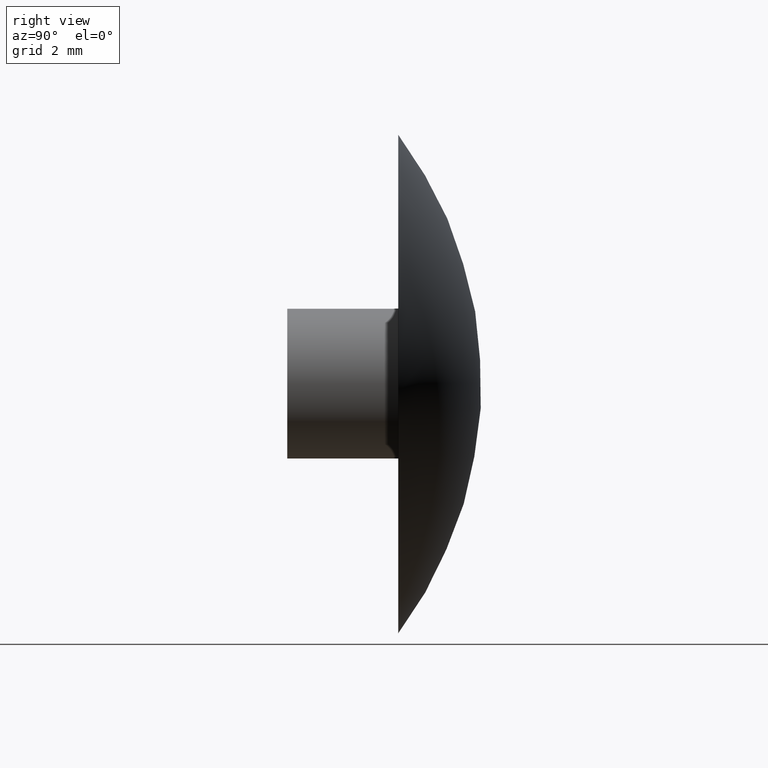
[diagram: clean part render]
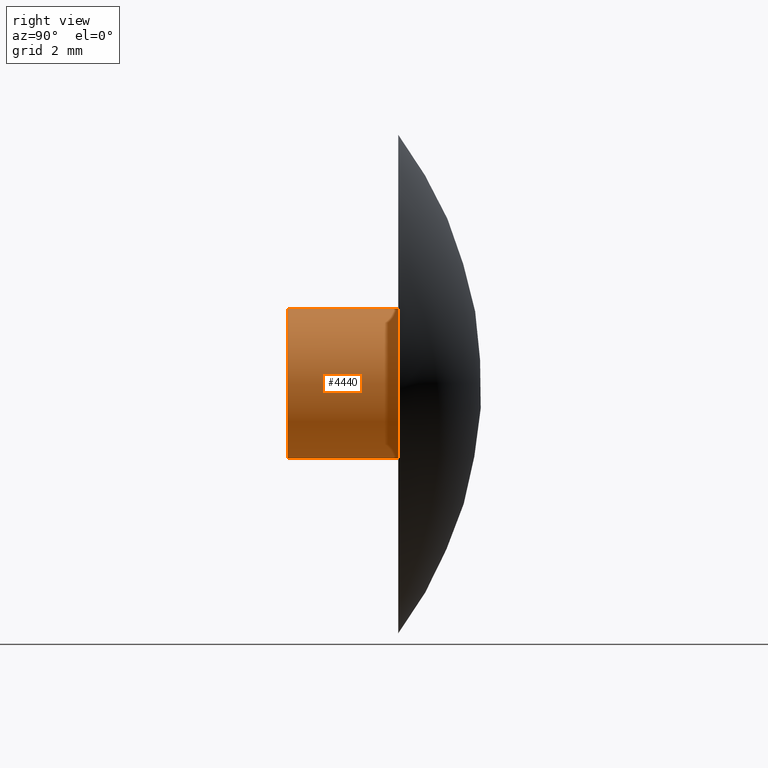
[diagram: same view with one face highlighted and labeled with its STEP entity id]
A machine part, right view. The second image highlights one B-rep face of the part: STEP entity #4440.
In plain terms, the highlighted cylindrical surface (bore or boss wall) has radius 1.35 mm, axis along (-0, -1, -0).
Its self-contained STEP definition (entity closure, byte-faithful):
#106 = DIRECTION ( 'NONE',  ( -0.000000000000000000, -1.000000000000000000, -0.000000000000000000 ) ) ;
#1083 = EDGE_LOOP ( 'NONE', ( #2098 ) ) ;
#1282 = VERTEX_POINT ( 'NONE', #5101 ) ;
#2028 = AXIS2_PLACEMENT_3D ( 'NONE', #11880, #8010, #5981 ) ;
#2098 = ORIENTED_EDGE ( 'NONE', *, *, #10939, .T. ) ;
#3810 = EDGE_CURVE ( 'NONE', #8001, #8001, #8369, .T. ) ;
#4440 = ADVANCED_FACE ( 'NONE', ( #11070, #8225 ), #7190, .T. ) ;
#5101 = CARTESIAN_POINT ( 'NONE',  ( 0.000000000000000000, 2.000000000000000000, -1.350000000000000089 ) ) ;
#5934 = DIRECTION ( 'NONE',  ( 0.000000000000000000, 0.000000000000000000, -1.000000000000000000 ) ) ;
#5981 = DIRECTION ( 'NONE',  ( 0.000000000000000000, 0.000000000000000000, -1.000000000000000000 ) ) ;
#6126 = DIRECTION ( 'NONE',  ( 0.000000000000000000, 0.000000000000000000, -1.000000000000000000 ) ) ;
#7123 = CIRCLE ( 'NONE', #9475, 1.350000000000000089 ) ;
#7190 = CYLINDRICAL_SURFACE ( 'NONE', #2028, 1.350000000000000089 ) ;
#7424 = ORIENTED_EDGE ( 'NONE', *, *, #3810, .F. ) ;
#8001 = VERTEX_POINT ( 'NONE', #9834 ) ;
#8010 = DIRECTION ( 'NONE',  ( -0.000000000000000000, -1.000000000000000000, -0.000000000000000000 ) ) ;
#8020 = AXIS2_PLACEMENT_3D ( 'NONE', #9981, #10877, #6126 ) ;
#8225 = FACE_OUTER_BOUND ( 'NONE', #11622, .T. ) ;
#8369 = CIRCLE ( 'NONE', #8020, 1.350000000000000089 ) ;
#9475 = AXIS2_PLACEMENT_3D ( 'NONE', #11552, #106, #5934 ) ;
#9834 = CARTESIAN_POINT ( 'NONE',  ( 0.000000000000000000, 0.000000000000000000, -1.350000000000000089 ) ) ;
#9981 = CARTESIAN_POINT ( 'NONE',  ( 0.000000000000000000, 0.000000000000000000, 0.000000000000000000 ) ) ;
#10877 = DIRECTION ( 'NONE',  ( -0.000000000000000000, -1.000000000000000000, -0.000000000000000000 ) ) ;
#10939 = EDGE_CURVE ( 'NONE', #1282, #1282, #7123, .T. ) ;
#11070 = FACE_OUTER_BOUND ( 'NONE', #1083, .T. ) ;
#11552 = CARTESIAN_POINT ( 'NONE',  ( 0.000000000000000000, 2.000000000000000000, 0.000000000000000000 ) ) ;
#11622 = EDGE_LOOP ( 'NONE', ( #7424 ) ) ;
#11880 = CARTESIAN_POINT ( 'NONE',  ( 0.000000000000000000, 0.000000000000000000, 0.000000000000000000 ) ) ;